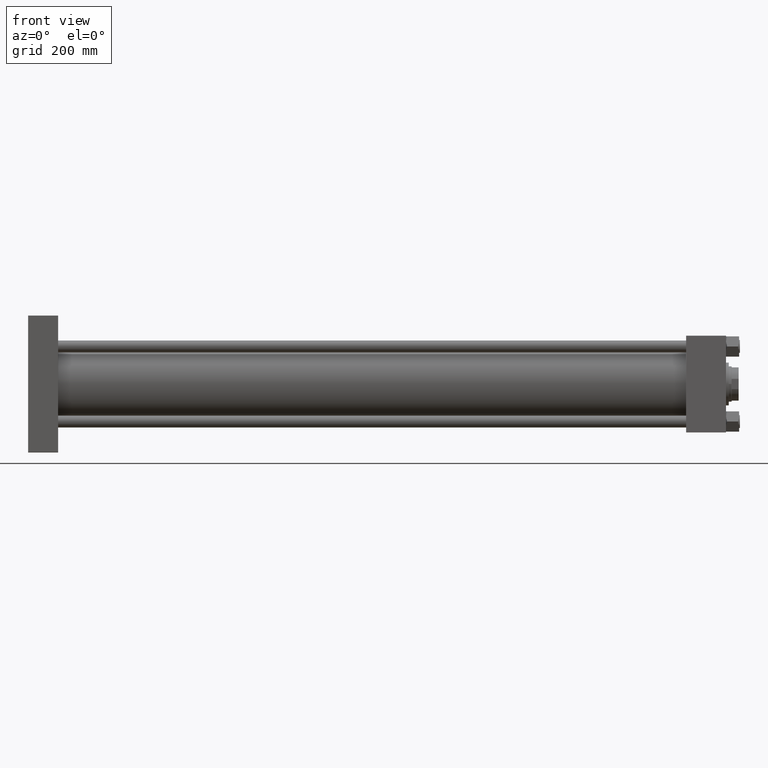
[diagram: clean part render]
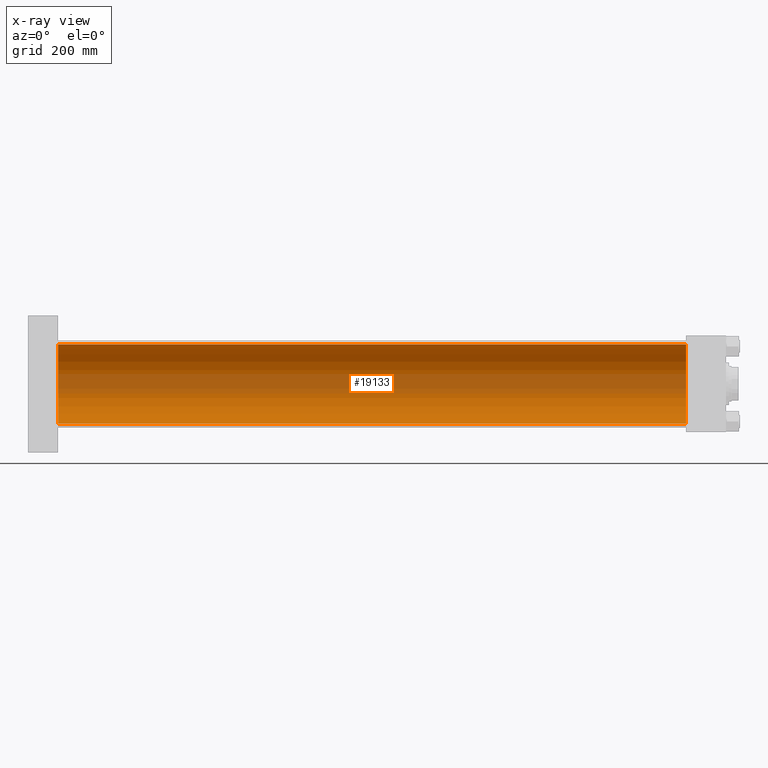
[diagram: x-ray — body ghosted, one internal face saturated and labeled with its STEP entity id]
A machine part, front view, then the same camera in x-ray: the body is ghosted and one INTERNAL B-rep face — a face not visible from any outside direction — is saturated and labeled: STEP entity #19133.
In plain terms, the highlighted cylindrical surface (partial cylindrical patch) has radius 100 mm, axis along (-1, -0, -0).
Its self-contained STEP definition (entity closure, byte-faithful):
#189 = CIRCLE ( 'NONE', #28769, 100.0000000000000000 ) ;
#230 = VERTEX_POINT ( 'NONE', #8999 ) ;
#598 = CARTESIAN_POINT ( 'NONE',  ( 1667.000000000000000, -2.602085213965210642E-15, 0.000000000000000000 ) ) ;
#1406 = CARTESIAN_POINT ( 'NONE',  ( 1667.000000000000000, 9.644382777508321529E-15, -100.0000000000000000 ) ) ;
#3675 = CYLINDRICAL_SURFACE ( 'NONE', #24077, 100.0000000000000000 ) ;
#7761 = CARTESIAN_POINT ( 'NONE',  ( 1667.000000000000000, -2.602085213965210642E-15, 0.000000000000000000 ) ) ;
#8999 = CARTESIAN_POINT ( 'NONE',  ( 1667.000000000000000, -2.602085213965210642E-15, 100.0000000000000000 ) ) ;
#10192 = VERTEX_POINT ( 'NONE', #13643 ) ;
#10427 = DIRECTION ( 'NONE',  ( -1.000000000000000000, -0.000000000000000000, -0.000000000000000000 ) ) ;
#13643 = CARTESIAN_POINT ( 'NONE',  ( 1667.000000000000000, 9.644382777508321529E-15, -100.0000000000000000 ) ) ;
#14826 = EDGE_LOOP ( 'NONE', ( #15180, #37739, #15950, #49368 ) ) ;
#15180 = ORIENTED_EDGE ( 'NONE', *, *, #29781, .F. ) ;
#15950 = ORIENTED_EDGE ( 'NONE', *, *, #38435, .T. ) ;
#16469 = AXIS2_PLACEMENT_3D ( 'NONE', #26534, #18606, #26022 ) ;
#16742 = DIRECTION ( 'NONE',  ( -1.000000000000000000, -0.000000000000000000, -0.000000000000000000 ) ) ;
#18606 = DIRECTION ( 'NONE',  ( 1.000000000000000000, 0.000000000000000000, 0.000000000000000000 ) ) ;
#19133 = ADVANCED_FACE ( 'NONE', ( #31506 ), #3675, .F. ) ;
#22931 = LINE ( 'NONE', #37740, #33453 ) ;
#23347 = DIRECTION ( 'NONE',  ( -1.000000000000000000, -0.000000000000000000, -0.000000000000000000 ) ) ;
#24077 = AXIS2_PLACEMENT_3D ( 'NONE', #7761, #23347, #30511 ) ;
#26022 = DIRECTION ( 'NONE',  ( 0.000000000000000000, 0.000000000000000000, -1.000000000000000000 ) ) ;
#26534 = CARTESIAN_POINT ( 'NONE',  ( 76.00000000000000000, -2.602085213965210642E-15, 0.000000000000000000 ) ) ;
#26962 = CARTESIAN_POINT ( 'NONE',  ( 76.00000000000000000, -2.602085213965210642E-15, 100.0000000000000000 ) ) ;
#28714 = DIRECTION ( 'NONE',  ( 0.000000000000000000, 0.000000000000000000, -1.000000000000000000 ) ) ;
#28769 = AXIS2_PLACEMENT_3D ( 'NONE', #598, #35599, #28714 ) ;
#29781 = EDGE_CURVE ( 'NONE', #10192, #38619, #43537, .T. ) ;
#30511 = DIRECTION ( 'NONE',  ( 0.000000000000000000, 0.000000000000000000, 1.000000000000000000 ) ) ;
#31506 = FACE_OUTER_BOUND ( 'NONE', #14826, .T. ) ;
#33453 = VECTOR ( 'NONE', #10427, 1000.000000000000000 ) ;
#35393 = VERTEX_POINT ( 'NONE', #26962 ) ;
#35599 = DIRECTION ( 'NONE',  ( 1.000000000000000000, 0.000000000000000000, 0.000000000000000000 ) ) ;
#37739 = ORIENTED_EDGE ( 'NONE', *, *, #43940, .T. ) ;
#37740 = CARTESIAN_POINT ( 'NONE',  ( 1667.000000000000000, -2.602085213965210642E-15, 100.0000000000000000 ) ) ;
#38435 = EDGE_CURVE ( 'NONE', #230, #35393, #22931, .T. ) ;
#38477 = CIRCLE ( 'NONE', #16469, 100.0000000000000000 ) ;
#38619 = VERTEX_POINT ( 'NONE', #40736 ) ;
#40736 = CARTESIAN_POINT ( 'NONE',  ( 76.00000000000000000, 9.644382777508321529E-15, -100.0000000000000000 ) ) ;
#42472 = EDGE_CURVE ( 'NONE', #38619, #35393, #38477, .T. ) ;
#43537 = LINE ( 'NONE', #1406, #46352 ) ;
#43940 = EDGE_CURVE ( 'NONE', #10192, #230, #189, .T. ) ;
#46352 = VECTOR ( 'NONE', #16742, 1000.000000000000000 ) ;
#49368 = ORIENTED_EDGE ( 'NONE', *, *, #42472, .F. ) ;